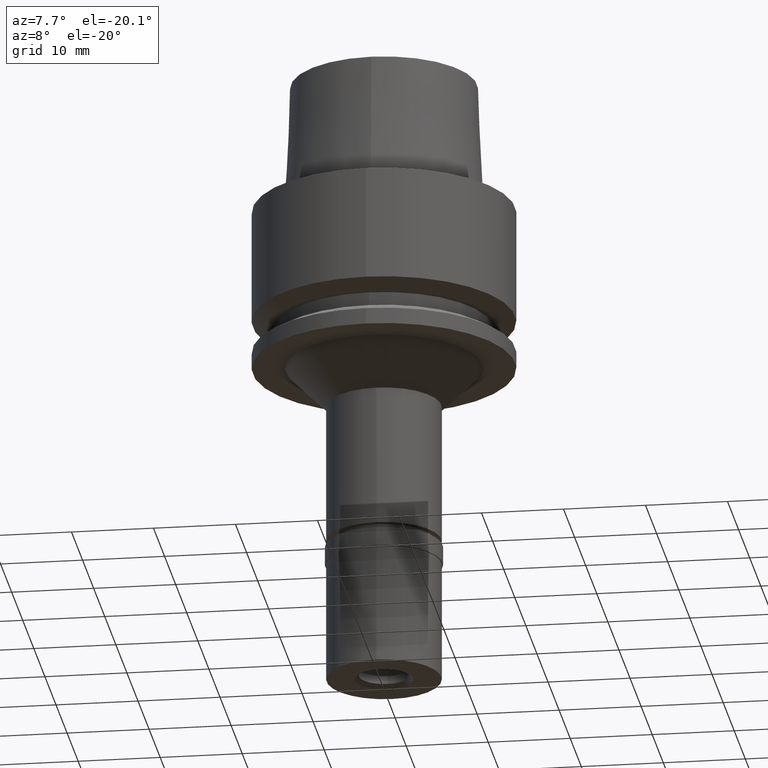
[diagram: clean part render]
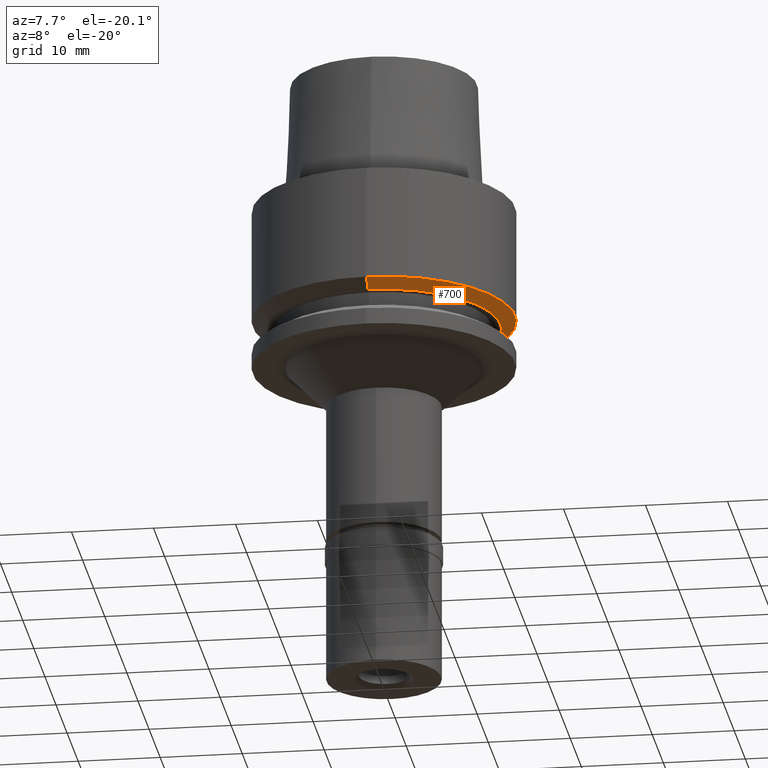
[diagram: same view with one face highlighted and labeled with its STEP entity id]
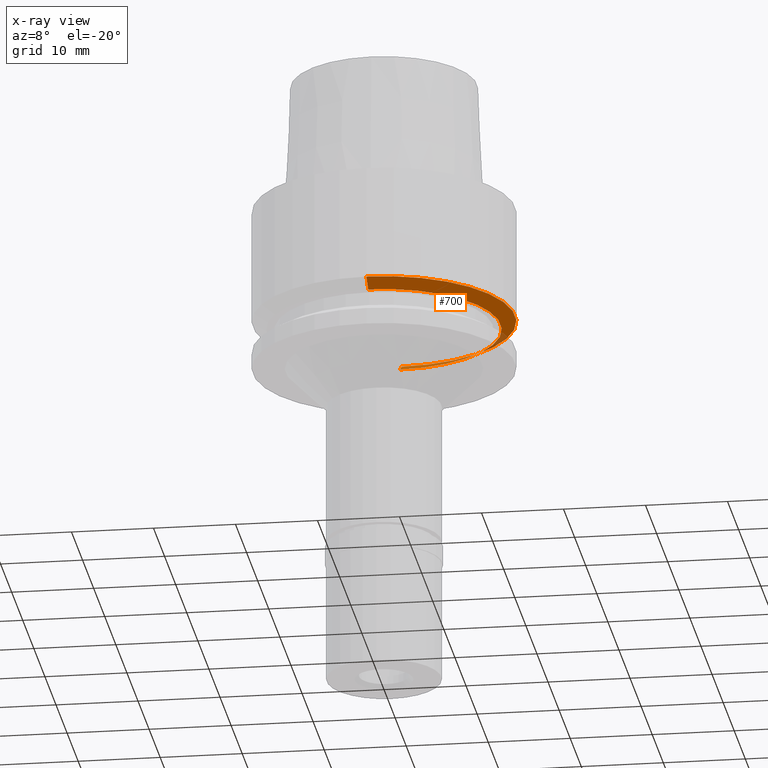
[diagram: x-ray of the same camera — body ghosted, the highlighted face saturated]
A machine part, auxiliary view. The second image highlights one B-rep face of the part: STEP entity #700.
The next image is the same camera in x-ray: the body ghosted, the highlighted face saturated — about 10% of this face is hidden behind the body in this view.
In plain terms, the highlighted conical surface has half-angle 60 deg.
Its self-contained STEP definition (entity closure, byte-faithful):
#21 = AXIS2_PLACEMENT_3D ( 'NONE', #2522, #1694, #431 ) ;
#95 = CARTESIAN_POINT ( 'NONE',  ( 0.0000000000000000000, 16.00000000000000000, -13.97927405783999966 ) ) ;
#145 = DIRECTION ( 'NONE',  ( 0.0000000000000000000, 1.000000000000000000, 0.0000000000000000000 ) ) ;
#188 = CARTESIAN_POINT ( 'NONE',  ( 0.0000000000000000000, 0.0000000000000000000, -13.97927405783999966 ) ) ;
#218 = EDGE_CURVE ( 'NONE', #1397, #1721, #2052, .T. ) ;
#338 = VECTOR ( 'NONE', #2219, 1000.000000000000000 ) ;
#360 = CIRCLE ( 'NONE', #757, 16.00000000000000000 ) ;
#382 = FACE_OUTER_BOUND ( 'NONE', #388, .T. ) ;
#388 = EDGE_LOOP ( 'NONE', ( #646, #818, #657, #2504 ) ) ;
#431 = DIRECTION ( 'NONE',  ( 0.0000000000000000000, -1.000000000000000000, 0.0000000000000000000 ) ) ;
#585 = DIRECTION ( 'NONE',  ( 0.0000000000000000000, 0.0000000000000000000, 1.000000000000000000 ) ) ;
#646 = ORIENTED_EDGE ( 'NONE', *, *, #2275, .F. ) ;
#657 = ORIENTED_EDGE ( 'NONE', *, *, #218, .T. ) ;
#700 = ADVANCED_FACE ( 'NONE', ( #382 ), #2014, .T. ) ;
#757 = AXIS2_PLACEMENT_3D ( 'NONE', #188, #2459, #1883 ) ;
#785 = CARTESIAN_POINT ( 'NONE',  ( 0.0000000000000000000, 14.23205080756999941, -15.00000000000000000 ) ) ;
#818 = ORIENTED_EDGE ( 'NONE', *, *, #1897, .T. ) ;
#1032 = VERTEX_POINT ( 'NONE', #1664 ) ;
#1162 = LINE ( 'NONE', #95, #1544 ) ;
#1197 = LINE ( 'NONE', #1618, #338 ) ;
#1306 = CARTESIAN_POINT ( 'NONE',  ( 0.0000000000000000000, 16.00000000000000000, -13.97927405783999966 ) ) ;
#1397 = VERTEX_POINT ( 'NONE', #1640 ) ;
#1400 = CARTESIAN_POINT ( 'NONE',  ( 0.0000000000000000000, 0.0000000000000000000, -14.48963702891999894 ) ) ;
#1536 = VERTEX_POINT ( 'NONE', #1306 ) ;
#1544 = VECTOR ( 'NONE', #1575, 1000.000000000000000 ) ;
#1575 = DIRECTION ( 'NONE',  ( 0.0000000000000000000, -0.8660254037847886499, -0.4999999999993937627 ) ) ;
#1618 = CARTESIAN_POINT ( 'NONE',  ( 0.0000000000000000000, -16.00000000000000000, -13.97927405783999966 ) ) ;
#1640 = CARTESIAN_POINT ( 'NONE',  ( 0.0000000000000000000, -14.23205080756999941, -15.00000000000000000 ) ) ;
#1664 = CARTESIAN_POINT ( 'NONE',  ( 0.0000000000000000000, -16.00000000000000000, -13.97927405783999966 ) ) ;
#1694 = DIRECTION ( 'NONE',  ( 0.0000000000000000000, 0.0000000000000000000, 1.000000000000000000 ) ) ;
#1721 = VERTEX_POINT ( 'NONE', #785 ) ;
#1788 = AXIS2_PLACEMENT_3D ( 'NONE', #1400, #585, #145 ) ;
#1883 = DIRECTION ( 'NONE',  ( 0.0000000000000000000, -1.000000000000000000, 0.0000000000000000000 ) ) ;
#1897 = EDGE_CURVE ( 'NONE', #1032, #1397, #1197, .T. ) ;
#2014 = CONICAL_SURFACE ( 'NONE', #1788, 15.11602540378000015, 1.047197551196400456 ) ;
#2052 = CIRCLE ( 'NONE', #21, 14.23205080756999941 ) ;
#2219 = DIRECTION ( 'NONE',  ( 0.0000000000000000000, 0.8660254037847886499, -0.4999999999993937627 ) ) ;
#2275 = EDGE_CURVE ( 'NONE', #1032, #1536, #360, .T. ) ;
#2459 = DIRECTION ( 'NONE',  ( 0.0000000000000000000, 0.0000000000000000000, 1.000000000000000000 ) ) ;
#2504 = ORIENTED_EDGE ( 'NONE', *, *, #2662, .F. ) ;
#2522 = CARTESIAN_POINT ( 'NONE',  ( 0.0000000000000000000, 0.0000000000000000000, -15.00000000000000000 ) ) ;
#2662 = EDGE_CURVE ( 'NONE', #1536, #1721, #1162, .T. ) ;